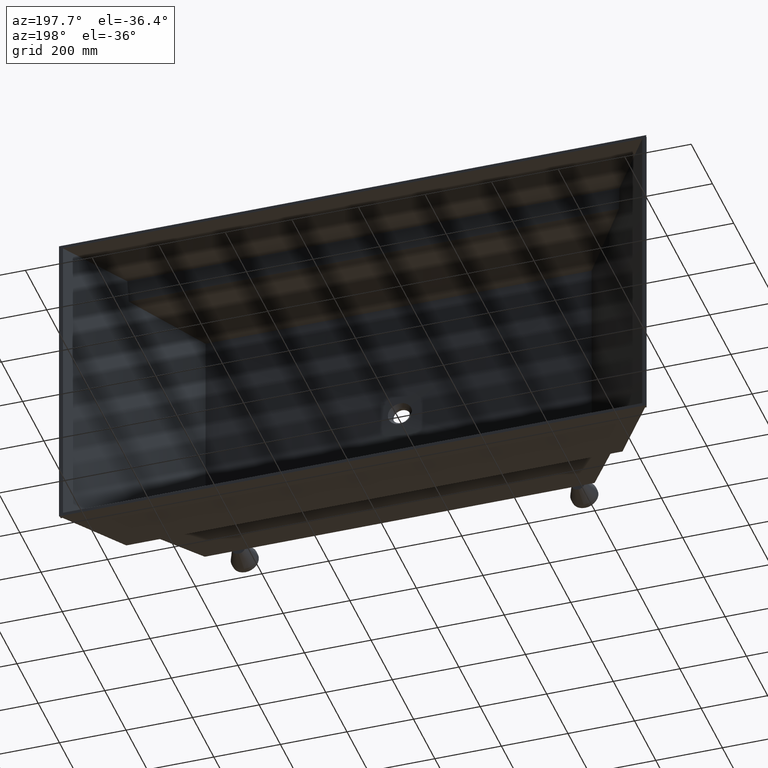
[diagram: clean part render]
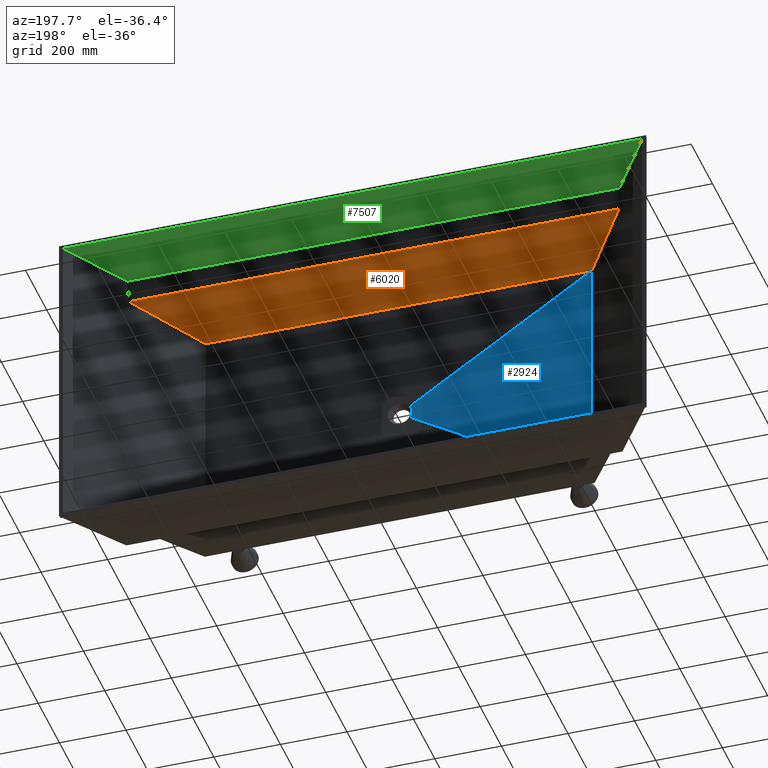
[diagram: same view with three faces highlighted in distinct colors, each labeled with its STEP entity id]
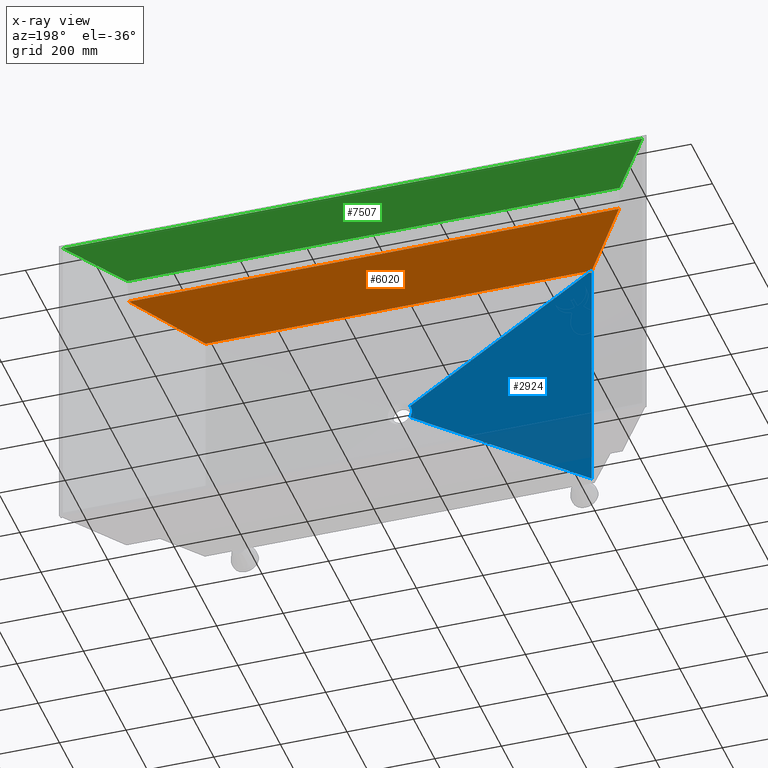
[diagram: x-ray of the same camera — body ghosted, the three highlighted faces saturated]
A machine part, auxiliary view with three faces highlighted in distinct colors.
The next image is the same camera in x-ray (body ghosted, the three faces saturated) — at least one of them is partly hidden behind the body in this view.
Their STEP definitions:

[orange] entity #6020 — the highlighted planar face has unit normal (0, -0.0897, 0.996).
#9 = VECTOR ( 'NONE', #7030, 1000.000000000000000 ) ;
#1390 = EDGE_CURVE ( 'NONE', #8579, #4532, #5361, .T. ) ;
#1788 = DIRECTION ( 'NONE',  ( 0.5549174707474422400, 0.8285491890815256400, 0.07465146972168566800 ) ) ;
#1849 = CARTESIAN_POINT ( 'NONE',  ( 777.2985769756136300, -138.4128143777896900, 396.5420166450842900 ) ) ;
#1881 = CARTESIAN_POINT ( 'NONE',  ( 870.0010999999998400, -432.9999999999999400, 369.9999999999999400 ) ) ;
#1958 = DIRECTION ( 'NONE',  ( -1.000000000000000000, 0.0000000000000000000, 0.0000000000000000000 ) ) ;
#2199 = AXIS2_PLACEMENT_3D ( 'NONE', #4307, #4246, #4219 ) ;
#2229 = VECTOR ( 'NONE', #1788, 1000.000000000000200 ) ;
#3835 = CARTESIAN_POINT ( 'NONE',  ( -580.0000000000000000, -432.9999999999999400, 369.9999999999997200 ) ) ;
#3982 = ORIENTED_EDGE ( 'NONE', *, *, #1390, .T. ) ;
#3992 = LINE ( 'NONE', #6996, #9 ) ;
#4219 = DIRECTION ( 'NONE',  ( 0.0000000000000000000, -0.9959656295343050100, -0.08973552689061171900 ) ) ;
#4246 = DIRECTION ( 'NONE',  ( 0.0000000000000000000, -0.08973552689061171900, 0.9959656295343050100 ) ) ;
#4307 = CARTESIAN_POINT ( 'NONE',  ( 870.0010999999998400, -200.0000000000000000, 390.9930715935336100 ) ) ;
#4532 = VERTEX_POINT ( 'NONE', #3835 ) ;
#4665 = ORIENTED_EDGE ( 'NONE', *, *, #7271, .F. ) ;
#4763 = FACE_OUTER_BOUND ( 'NONE', #5044, .T. ) ;
#5044 = EDGE_LOOP ( 'NONE', ( #5345, #3982, #8872, #4665 ) ) ;
#5120 = EDGE_CURVE ( 'NONE', #4532, #5945, #5314, .T. ) ;
#5314 = LINE ( 'NONE', #8695, #6933 ) ;
#5345 = ORIENTED_EDGE ( 'NONE', *, *, #7106, .F. ) ;
#5361 = LINE ( 'NONE', #1881, #5926 ) ;
#5789 = PLANE ( 'NONE',  #2199 ) ;
#5877 = LINE ( 'NONE', #1849, #2229 ) ;
#5926 = VECTOR ( 'NONE', #1958, 1000.000000000000000 ) ;
#5945 = VERTEX_POINT ( 'NONE', #6188 ) ;
#6020 = ADVANCED_FACE ( 'NONE', ( #4763 ), #5789, .F. ) ;
#6188 = CARTESIAN_POINT ( 'NONE',  ( -736.0508083140877000, -200.0000000000000000, 390.9930715935336100 ) ) ;
#6933 = VECTOR ( 'NONE', #7367, 1000.000000000000100 ) ;
#6996 = CARTESIAN_POINT ( 'NONE',  ( 870.0010999999998400, -200.0000000000000000, 390.9930715935336100 ) ) ;
#7030 = DIRECTION ( 'NONE',  ( -1.000000000000000000, 0.0000000000000000000, 0.0000000000000000000 ) ) ;
#7106 = EDGE_CURVE ( 'NONE', #8579, #8760, #5877, .T. ) ;
#7271 = EDGE_CURVE ( 'NONE', #8760, #5945, #3992, .T. ) ;
#7367 = DIRECTION ( 'NONE',  ( -0.5549174707474425800, 0.8285491890815255300, 0.07465146972168566800 ) ) ;
#8115 = CARTESIAN_POINT ( 'NONE',  ( 736.0508083140871300, -200.0000000000000000, 390.9930715935336100 ) ) ;
#8256 = CARTESIAN_POINT ( 'NONE',  ( 579.9999999999997700, -433.0000000000000000, 370.0000000000000000 ) ) ;
#8579 = VERTEX_POINT ( 'NONE', #8256 ) ;
#8695 = CARTESIAN_POINT ( 'NONE',  ( -777.2985769756142000, -138.4128143777898600, 396.5420166450842900 ) ) ;
#8760 = VERTEX_POINT ( 'NONE', #8115 ) ;
#8872 = ORIENTED_EDGE ( 'NONE', *, *, #5120, .T. ) ;

[blue] entity #2924 — the highlighted face is a freeform B-spline surface patch.
#34 = CARTESIAN_POINT ( 'NONE',  ( -580.0000000000001100, -433.0000000000000000, -449.9999999999998900 ) ) ;
#167 = CARTESIAN_POINT ( 'NONE',  ( -30.56765834533911200, -444.8140548353761700, -19.49930693500326500 ) ) ;
#234 = EDGE_LOOP ( 'NONE', ( #659, #1214, #7530, #2360 ) ) ;
#659 = ORIENTED_EDGE ( 'NONE', *, *, #2936, .T. ) ;
#764 = VECTOR ( 'NONE', #7022, 1000.000000000000100 ) ;
#766 = CARTESIAN_POINT ( 'NONE',  ( -580.0000000000001100, -433.0000000000000000, -377.3999999999996400 ) ) ;
#1196 = CARTESIAN_POINT ( 'NONE',  ( -32.74141835627872200, -444.8015000420929800, 15.57380538438709800 ) ) ;
#1214 = ORIENTED_EDGE ( 'NONE', *, *, #7430, .T. ) ;
#1307 = LINE ( 'NONE', #2593, #1507 ) ;
#1484 = CARTESIAN_POINT ( 'NONE',  ( -21.76921567608521400, -445.0000000000000000, -14.21898241405437300 ) ) ;
#1507 = VECTOR ( 'NONE', #7745, 999.9999999999998900 ) ;
#1617 = EDGE_CURVE ( 'NONE', #8200, #4985, #4004, .T. ) ;
#1833 = CARTESIAN_POINT ( 'NONE',  ( -30.56730596582646000, -444.8140551276470700, 19.49983311536442800 ) ) ;
#2293 = CARTESIAN_POINT ( 'NONE',  ( -31.43810724204282900, -444.8092036110172700, 18.07660891271805400 ) ) ;
#2360 = ORIENTED_EDGE ( 'NONE', *, *, #1617, .F. ) ;
#2453 = CARTESIAN_POINT ( 'NONE',  ( -30.82540846008339500, -444.8126231954483400, 19.08795703520714700 ) ) ;
#2560 = CARTESIAN_POINT ( 'NONE',  ( -33.13869108395567100, -444.7990600993301800, -14.70422231844733000 ) ) ;
#2593 = CARTESIAN_POINT ( 'NONE',  ( -300.9598117256403500, -439.0000000000000000, -191.9916040318738300 ) ) ;
#2610 = CARTESIAN_POINT ( 'NONE',  ( -30.82520222363604400, -444.8126243304379800, -19.08828455834499500 ) ) ;
#2641 = CARTESIAN_POINT ( 'NONE',  ( -33.86181984412965600, -444.7945150074170300, -12.93941250246953200 ) ) ;
#2754 = CARTESIAN_POINT ( 'NONE',  ( -36.22048015240812900, -444.7786045098187100, 1.921671570568215000 ) ) ;
#2778 = CARTESIAN_POINT ( 'NONE',  ( -31.89407816595993900, -444.8065466085960800, 17.25368618505483200 ) ) ;
#2924 = ADVANCED_FACE ( 'NONE', ( #3083 ), #8666, .F. ) ;
#2936 = EDGE_CURVE ( 'NONE', #8200, #4900, #1307, .T. ) ;
#3083 = FACE_OUTER_BOUND ( 'NONE', #234, .T. ) ;
#3107 = CARTESIAN_POINT ( 'NONE',  ( -33.13331701981609700, -444.7990929359166300, 14.71582126275327900 ) ) ;
#3127 = CARTESIAN_POINT ( 'NONE',  ( -30.69771827209721200, -444.8133234551243600, -19.29403795304559200 ) ) ;
#3155 = VECTOR ( 'NONE', #9026, 1000.000000000000000 ) ;
#3606 = CARTESIAN_POINT ( 'NONE',  ( -588.5041239579719600, -432.8162719284654800, -219.0059805111616000 ) ) ;
#3637 = CARTESIAN_POINT ( 'NONE',  ( -588.4821126358390300, -432.8162719284654800, -31.28605220817880900 ) ) ;
#3835 = CARTESIAN_POINT ( 'NONE',  ( -580.0000000000000000, -432.9999999999999400, 369.9999999999997200 ) ) ;
#4004 = B_SPLINE_CURVE_WITH_KNOTS ( 'NONE', 3,
 ( #6174, #3127, #2610, #7306, #8547, #5305, #2560, #2641, #5952, #5413, #5296, #5281, #5266, #5261, #5259, #5244, #5181, #2754, #7318, #7301, #4952, #5780, #8059, #8012, #8097, #8106, #5718, #3107, #1196, #2778, #2293, #2453, #5110, #1833 ),
 .UNSPECIFIED., .F., .F.,
 ( 4, 2, 2, 2, 2, 2, 2, 2, 2, 2, 2, 2, 2, 2, 2, 2, 4 ),
 ( 0.0000000000000000000, 0.01772811843294067400, 0.08662173569772688200, 0.1555153529625134300, 0.2244089702272999400, 0.2933025874920858200, 0.3621962047568723600, 0.4310898220216589100, 0.4999834392864447900, 0.6377706738160178200, 0.7066642910808037500, 0.7755579083455902400, 0.8100047169779838200, 0.8444515256103768400, 0.9133451428751626600, 0.9822387601399491500, 1.000000000000000000 ),
 .UNSPECIFIED. ) ;
#4174 = EDGE_CURVE ( 'NONE', #4532, #4985, #6172, .T. ) ;
#4532 = VERTEX_POINT ( 'NONE', #3835 ) ;
#4900 = VERTEX_POINT ( 'NONE', #8995 ) ;
#4952 = CARTESIAN_POINT ( 'NONE',  ( -35.45135836803476100, -444.7839795961700100, 7.514293012388144200 ) ) ;
#4985 = VERTEX_POINT ( 'NONE', #8808 ) ;
#5026 = CARTESIAN_POINT ( 'NONE',  ( -580.0000000000001100, -433.0000000000000000, -374.9333333333329400 ) ) ;
#5050 = CARTESIAN_POINT ( 'NONE',  ( -21.81935160115035900, -445.0000000000000000, -14.14039096395225300 ) ) ;
#5080 = CARTESIAN_POINT ( 'NONE',  ( -21.86948752621550400, -445.0000000000000000, -14.06179951385013500 ) ) ;
#5110 = CARTESIAN_POINT ( 'NONE',  ( -30.69752466145234500, -444.8133244594840200, 19.29435946762402700 ) ) ;
#5123 = CARTESIAN_POINT ( 'NONE',  ( -588.5468887895816600, -432.8162719284655400, -382.9605456649140400 ) ) ;
#5149 = CARTESIAN_POINT ( 'NONE',  ( -588.5461211748460100, -432.8162719284655400, -380.4573159603958200 ) ) ;
#5176 = CARTESIAN_POINT ( 'NONE',  ( -580.0000000000001100, -433.0000000000000000, -372.4666666666663000 ) ) ;
#5181 = CARTESIAN_POINT ( 'NONE',  ( -36.22185923866242500, -444.7785944522145200, -0.9398985489317578400 ) ) ;
#5244 = CARTESIAN_POINT ( 'NONE',  ( -36.18458293180710000, -444.7788579542607900, -1.894923935516449100 ) ) ;
#5259 = CARTESIAN_POINT ( 'NONE',  ( -36.03625071387895000, -444.7799067998687400, -3.791485130253340800 ) ) ;
#5261 = CARTESIAN_POINT ( 'NONE',  ( -35.92561370361441000, -444.7806889965376600, -4.730525605496598700 ) ) ;
#5266 = CARTESIAN_POINT ( 'NONE',  ( -35.63294504037918400, -444.7827260942458500, -6.592948213660759100 ) ) ;
#5281 = CARTESIAN_POINT ( 'NONE',  ( -35.45094957352917900, -444.7839823684104200, -7.515982226303683500 ) ) ;
#5296 = CARTESIAN_POINT ( 'NONE',  ( -35.01613488929456300, -444.7869374765397200, -9.345770808548318000 ) ) ;
#5305 = CARTESIAN_POINT ( 'NONE',  ( -32.74442303289143300, -444.8014819842241500, -15.56766168283038700 ) ) ;
#5413 = CARTESIAN_POINT ( 'NONE',  ( -34.76332382022828700, -444.7886355811431300, -10.25250652753584300 ) ) ;
#5633 = CARTESIAN_POINT ( 'NONE',  ( -588.4932912487522600, -432.8162719284655400, -156.4314884892164300 ) ) ;
#5718 = CARTESIAN_POINT ( 'NONE',  ( -33.67210472190944900, -444.7957078759700900, 13.40315150937535500 ) ) ;
#5780 = CARTESIAN_POINT ( 'NONE',  ( -35.01560382327910000, -444.7869410797320600, 9.347974558241498100 ) ) ;
#5869 = CARTESIAN_POINT ( 'NONE',  ( -580.0000000000001100, -433.0000000000000000, -154.1666666666667700 ) ) ;
#5885 = CARTESIAN_POINT ( 'NONE',  ( -25.54218162178406400, -445.0000000000000600, -5.017869069201322100 ) ) ;
#5952 = CARTESIAN_POINT ( 'NONE',  ( -34.18606458341243800, -444.7924236354069200, -12.04956869124118100 ) ) ;
#6059 = CARTESIAN_POINT ( 'NONE',  ( -24.12722973465617900, -445.0000000000000600, -9.763856506295166300 ) ) ;
#6080 = CARTESIAN_POINT ( 'NONE',  ( -588.5262203168255200, -432.8162719284655400, -312.8710601414813400 ) ) ;
#6103 = CARTESIAN_POINT ( 'NONE',  ( -580.0000000000001100, -433.0000000000000000, -308.3333333333331400 ) ) ;
#6122 = CARTESIAN_POINT ( 'NONE',  ( -23.11915458853338000, -445.0000000000000600, -11.95662158203125200 ) ) ;
#6147 = CARTESIAN_POINT ( 'NONE',  ( -588.5349907611803200, -432.8162719284655400, -344.1604852448819000 ) ) ;
#6165 = CARTESIAN_POINT ( 'NONE',  ( -580.0000000000001100, -433.0000000000000000, -339.1666666666664000 ) ) ;
#6172 = LINE ( 'NONE', #8467, #764 ) ;
#6174 = CARTESIAN_POINT ( 'NONE',  ( -30.56765834533911200, -444.8140548353761700, -19.49930693500326500 ) ) ;
#6176 = CARTESIAN_POINT ( 'NONE',  ( -580.0000000000001100, -433.0000000000000000, -369.9999999999996000 ) ) ;
#6191 = CARTESIAN_POINT ( 'NONE',  ( -22.54632251459497300, -445.0000000000000600, -13.00081493747151600 ) ) ;
#6214 = CARTESIAN_POINT ( 'NONE',  ( -588.5445859453749300, -432.8162719284655400, -375.4508565513593800 ) ) ;
#6231 = CARTESIAN_POINT ( 'NONE',  ( -21.91962345128065000, -445.0000000000000000, -13.98320806374801400 ) ) ;
#6280 = CARTESIAN_POINT ( 'NONE',  ( -580.0000000000001100, -432.9999999999999400, -123.3333333333334700 ) ) ;
#6294 = CARTESIAN_POINT ( 'NONE',  ( -588.5453535601104700, -432.8162719284655400, -377.9540862558776000 ) ) ;
#6534 = CARTESIAN_POINT ( 'NONE',  ( -580.0000000000001100, -432.9999999999999400, -246.6666666666666000 ) ) ;
#6579 = CARTESIAN_POINT ( 'NONE',  ( -580.0000000000001100, -432.9999999999999400, -215.8333333333333100 ) ) ;
#6637 = CARTESIAN_POINT ( 'NONE',  ( -588.5107860082788400, -432.8162719284654800, -250.2938080376540600 ) ) ;
#6645 = CARTESIAN_POINT ( 'NONE',  ( -25.26988100491008300, -444.9999999999998900, -6.242282310927489400 ) ) ;
#6665 = CARTESIAN_POINT ( 'NONE',  ( -24.56235433492526400, -444.9999999999998300, -8.615319145406743900 ) ) ;
#6674 = CARTESIAN_POINT ( 'NONE',  ( -588.4891221431510100, -432.8162719284654800, -125.1448226734958400 ) ) ;
#6695 = CARTESIAN_POINT ( 'NONE',  ( -25.90727054390348600, -445.0000000000000600, -2.528909836439777100 ) ) ;
#6727 = CARTESIAN_POINT ( 'NONE',  ( -580.0000000000001100, -432.9999999999999400, -61.66666666666689200 ) ) ;
#6810 = LINE ( 'NONE', #34, #3155 ) ;
#6812 = CARTESIAN_POINT ( 'NONE',  ( -26.00000000000000700, -445.0000000000000600, -1.264490353752050400 ) ) ;
#6881 = CARTESIAN_POINT ( 'NONE',  ( -580.0000000000001100, -432.9999999999999400, 30.83333333333302700 ) ) ;
#6888 = CARTESIAN_POINT ( 'NONE',  ( -588.4835323861843800, -432.8162719284654800, -62.57210550144097300 ) ) ;
#6916 = CARTESIAN_POINT ( 'NONE',  ( -580.0000000000001100, -432.9999999999999400, -30.83333333333359500 ) ) ;
#6925 = CARTESIAN_POINT ( 'NONE',  ( -26.00000000000001100, -445.0000000000000600, 1.264490353752040700 ) ) ;
#6937 = CARTESIAN_POINT ( 'NONE',  ( -580.0000000000001100, -432.9999999999999400, 61.66666666666634500 ) ) ;
#6948 = CARTESIAN_POINT ( 'NONE',  ( -588.4821126358390300, -432.8162719284654800, 31.28605220817822600 ) ) ;
#6988 = CARTESIAN_POINT ( 'NONE',  ( -25.90727054390348300, -445.0000000000000600, 2.528909836439767700 ) ) ;
#7020 = CARTESIAN_POINT ( 'NONE',  ( -588.4835323861843800, -432.8162719284654800, 62.57210550144041900 ) ) ;
#7022 = DIRECTION ( 'NONE',  ( 0.8429239527360896700, -0.01812478606645660400, -0.5377273491592291500 ) ) ;
#7034 = CARTESIAN_POINT ( 'NONE',  ( -580.0000000000000000, -432.9999999999999400, 123.3333333333329900 ) ) ;
#7050 = CARTESIAN_POINT ( 'NONE',  ( -588.4891221431508900, -432.8162719284654800, 125.1448226734953600 ) ) ;
#7056 = CARTESIAN_POINT ( 'NONE',  ( -25.54218162178407400, -445.0000000000001100, 5.017869069201314100 ) ) ;
#7088 = CARTESIAN_POINT ( 'NONE',  ( -25.26988100491007900, -444.9999999999998300, 6.242282310927482300 ) ) ;
#7110 = CARTESIAN_POINT ( 'NONE',  ( -579.9999999999998900, -432.9999999999999400, 154.1666666666663200 ) ) ;
#7151 = CARTESIAN_POINT ( 'NONE',  ( -588.4932912487520300, -432.8162719284654800, 156.4314884892159800 ) ) ;
#7208 = CARTESIAN_POINT ( 'NONE',  ( -588.5041239579717300, -432.8162719284655400, 219.0059805111612800 ) ) ;
#7218 = CARTESIAN_POINT ( 'NONE',  ( -580.0000000000000000, -433.0000000000000000, 369.9999999999997200 ) ) ;
#7240 = CARTESIAN_POINT ( 'NONE',  ( -24.56235433492526700, -444.9999999999999400, 8.615319145406736800 ) ) ;
#7276 = CARTESIAN_POINT ( 'NONE',  ( -579.9999999999998900, -433.0000000000000000, 215.8333333333330000 ) ) ;
#7301 = CARTESIAN_POINT ( 'NONE',  ( -35.63318139805406300, -444.7827244311970400, 6.591326383911224200 ) ) ;
#7306 = CARTESIAN_POINT ( 'NONE',  ( -31.43726554967461000, -444.8092084338898600, -18.07804802994965200 ) ) ;
#7313 = CARTESIAN_POINT ( 'NONE',  ( -24.12722973465617200, -445.0000000000000000, 9.763856506295153900 ) ) ;
#7318 = CARTESIAN_POINT ( 'NONE',  ( -36.07121472542282000, -444.7796755877503800, 3.804216188069321700 ) ) ;
#7320 = CARTESIAN_POINT ( 'NONE',  ( -579.9999999999998900, -432.9999999999999400, 246.6666666666663200 ) ) ;
#7359 = CARTESIAN_POINT ( 'NONE',  ( -588.5107860082786100, -432.8162719284654800, 250.2938080376537800 ) ) ;
#7387 = CARTESIAN_POINT ( 'NONE',  ( -23.11915458853339400, -445.0000000000001100, 11.95662158203123900 ) ) ;
#7394 = CARTESIAN_POINT ( 'NONE',  ( -579.9999999999998900, -432.9999999999999400, 308.3333333333330300 ) ) ;
#7421 = CARTESIAN_POINT ( 'NONE',  ( -588.5262203168252900, -432.8162719284654800, 312.8710601414812200 ) ) ;
#7430 = EDGE_CURVE ( 'NONE', #4900, #4532, #6810, .T. ) ;
#7432 = CARTESIAN_POINT ( 'NONE',  ( -22.54632251459497300, -445.0000000000000600, 13.00081493747150300 ) ) ;
#7451 = CARTESIAN_POINT ( 'NONE',  ( -579.9999999999998900, -432.9999999999999400, 339.1666666666664000 ) ) ;
#7480 = CARTESIAN_POINT ( 'NONE',  ( -588.5349907611801000, -432.8162719284654800, 344.1604852448819000 ) ) ;
#7530 = ORIENTED_EDGE ( 'NONE', *, *, #4174, .T. ) ;
#7549 = CARTESIAN_POINT ( 'NONE',  ( -21.91962345128065700, -445.0000000000000000, 13.98320806374800200 ) ) ;
#7584 = CARTESIAN_POINT ( 'NONE',  ( -580.0000000000000000, -433.0000000000000000, 372.4666666666664100 ) ) ;
#7612 = CARTESIAN_POINT ( 'NONE',  ( -588.5445859453748200, -432.8162719284655400, 375.4508565513594900 ) ) ;
#7628 = CARTESIAN_POINT ( 'NONE',  ( -21.86948752621551200, -445.0000000000000000, 14.06179951385012200 ) ) ;
#7639 = CARTESIAN_POINT ( 'NONE',  ( -580.0000000000000000, -433.0000000000000000, 374.9333333333330500 ) ) ;
#7683 = CARTESIAN_POINT ( 'NONE',  ( -588.5453535601103600, -432.8162719284655400, 377.9540862558777100 ) ) ;
#7695 = CARTESIAN_POINT ( 'NONE',  ( -21.81935160115036600, -445.0000000000000000, 14.14039096395224200 ) ) ;
#7705 = CARTESIAN_POINT ( 'NONE',  ( -588.5461211748458900, -432.8162719284655400, 380.4573159603959300 ) ) ;
#7740 = CARTESIAN_POINT ( 'NONE',  ( -21.76921567608522100, -445.0000000000000000, 14.21898241405436100 ) ) ;
#7745 = DIRECTION ( 'NONE',  ( -0.8429239527360898900, 0.01812478606645660400, -0.5377273491592290400 ) ) ;
#7760 = CARTESIAN_POINT ( 'NONE',  ( -588.5468887895815400, -432.8162719284655400, 382.9605456649141500 ) ) ;
#7899 = CARTESIAN_POINT ( 'NONE',  ( -580.0000000000000000, -433.0000000000000000, 377.3999999999997500 ) ) ;
#8012 = CARTESIAN_POINT ( 'NONE',  ( -34.32538451715749500, -444.7915092932514100, 11.61536836956860000 ) ) ;
#8059 = CARTESIAN_POINT ( 'NONE',  ( -34.76167112678281500, -444.7886466398521200, 10.25859850585224300 ) ) ;
#8097 = CARTESIAN_POINT ( 'NONE',  ( -34.17032436369090200, -444.7925172422862400, 12.06695047155567800 ) ) ;
#8106 = CARTESIAN_POINT ( 'NONE',  ( -33.84369876869258300, -444.7946164130200400, 12.96069377683308200 ) ) ;
#8200 = VERTEX_POINT ( 'NONE', #167 ) ;
#8467 = CARTESIAN_POINT ( 'NONE',  ( -300.9598117256402900, -439.0000000000000000, 191.9916040318738300 ) ) ;
#8547 = CARTESIAN_POINT ( 'NONE',  ( -31.89405815491896900, -444.8065468882628600, -17.25391202251997700 ) ) ;
#8666 = B_SPLINE_SURFACE_WITH_KNOTS ( 'NONE', 3, 1, ( 
 ( #7760, #7899, #7740 ),
 ( #7705, #7639, #7695 ),
 ( #7683, #7584, #7628 ),
 ( #7612, #7218, #7549 ),
 ( #7480, #7451, #7432 ),
 ( #7421, #7394, #7387 ),
 ( #7359, #7320, #7313 ),
 ( #7208, #7276, #7240 ),
 ( #7151, #7110, #7088 ),
 ( #7050, #7034, #7056 ),
 ( #7020, #6937, #6988 ),
 ( #6948, #6881, #6925 ),
 ( #3637, #6916, #6812 ),
 ( #6888, #6727, #6695 ),
 ( #6674, #6280, #5885 ),
 ( #5633, #5869, #6645 ),
 ( #3606, #6579, #6665 ),
 ( #6637, #6534, #6059 ),
 ( #6080, #6103, #6122 ),
 ( #6147, #6165, #6191 ),
 ( #6214, #6176, #6231 ),
 ( #6294, #5176, #5080 ),
 ( #5149, #5026, #5050 ),
 ( #5123, #766, #1484 ) ),
 .UNSPECIFIED., .F., .F., .F.,
 ( 4, 3, 2, 2, 2, 2, 2, 2, 2, 3, 4 ),
 ( 2, 1, 2 ),
 ( -0.01000000000000000000, 0.0000000000000000000, 0.1250000000000000000, 0.2500000000000000000, 0.3750000000000000000, 0.5000000000000000000, 0.6250000000000000000, 0.7500000000000000000, 0.8750000000000000000, 1.000000000000000000, 1.010000000000000000 ),
 ( -0.01531067262786818500, 0.0000000000000000000, 1.000000000000000000 ),
 .UNSPECIFIED. ) ;
#8808 = CARTESIAN_POINT ( 'NONE',  ( -30.56730596582646000, -444.8140551276470700, 19.49983311536442800 ) ) ;
#8995 = CARTESIAN_POINT ( 'NONE',  ( -580.0000000000001100, -433.0000000000000000, -369.9999999999996600 ) ) ;
#9026 = DIRECTION ( 'NONE',  ( 1.233581138472396200E-016, 0.0000000000000000000, 1.000000000000000000 ) ) ;

[green] entity #7507 — the highlighted planar face has unit normal (0, -0.0461, 0.9989).
#310 = ORIENTED_EDGE ( 'NONE', *, *, #7692, .F. ) ;
#755 = EDGE_LOOP ( 'NONE', ( #310, #4735, #6775, #7678 ) ) ;
#843 = CARTESIAN_POINT ( 'NONE',  ( 739.3995381062371700, -194.9999999999966200, 460.9930715935336700 ) ) ;
#968 = CARTESIAN_POINT ( 'NONE',  ( 739.3995381062371700, -194.9999999999966200, 460.9930715935336700 ) ) ;
#997 = VERTEX_POINT ( 'NONE', #5824 ) ;
#1140 = CARTESIAN_POINT ( 'NONE',  ( 869.9999999999998900, 0.0000000000000000000, 470.0000000000001700 ) ) ;
#1405 = CARTESIAN_POINT ( 'NONE',  ( -870.0000000000001100, 0.0000000000000000000, 470.0000000000001700 ) ) ;
#1431 = CARTESIAN_POINT ( 'NONE',  ( -739.3995381062357000, -194.9999999999998900, 460.9930715935336700 ) ) ;
#1860 = CARTESIAN_POINT ( 'NONE',  ( 869.9999999999998900, 0.0000000000000000000, 470.0000000000001700 ) ) ;
#1928 = CARTESIAN_POINT ( 'NONE',  ( 826.4665127020779200, -65.00000000000005700, 466.9976905311779700 ) ) ;
#1965 = VERTEX_POINT ( 'NONE', #1431 ) ;
#1994 = DIRECTION ( 'NONE',  ( 1.000000000000000000, 0.0000000000000000000, 0.0000000000000000000 ) ) ;
#2135 = VECTOR ( 'NONE', #4177, 1000.000000000000000 ) ;
#2695 = CARTESIAN_POINT ( 'NONE',  ( 782.9330254041564100, -130.0000000000001100, 463.9953810623557600 ) ) ;
#2958 = FACE_OUTER_BOUND ( 'NONE', #755, .T. ) ;
#3285 = EDGE_CURVE ( 'NONE', #997, #3969, #6521, .T. ) ;
#3644 = EDGE_CURVE ( 'NONE', #3969, #4731, #8885, .T. ) ;
#3969 = VERTEX_POINT ( 'NONE', #1860 ) ;
#4120 = LINE ( 'NONE', #5583, #2135 ) ;
#4177 = DIRECTION ( 'NONE',  ( -1.000000000000000000, -6.906990943429468300E-016, 0.0000000000000000000 ) ) ;
#4731 = VERTEX_POINT ( 'NONE', #843 ) ;
#4735 = ORIENTED_EDGE ( 'NONE', *, *, #3285, .T. ) ;
#4783 = EDGE_CURVE ( 'NONE', #4731, #1965, #4120, .T. ) ;
#5348 = B_SPLINE_CURVE_WITH_KNOTS ( 'NONE', 3,
 ( #6681, #6517, #6474, #6458 ),
 .UNSPECIFIED., .F., .F.,
 ( 4, 4 ),
 ( 0.0000000000000000000, 0.4503464203233260000 ),
 .UNSPECIFIED. ) ;
#5583 = CARTESIAN_POINT ( 'NONE',  ( 870.0010999999997200, -194.9999999999987500, 460.9930715935336700 ) ) ;
#5824 = CARTESIAN_POINT ( 'NONE',  ( -870.0000000000001100, 0.0000000000000000000, 470.0000000000001700 ) ) ;
#6458 = CARTESIAN_POINT ( 'NONE',  ( -739.3995381062357000, -194.9999999999998900, 460.9930715935336700 ) ) ;
#6474 = CARTESIAN_POINT ( 'NONE',  ( -782.9330254041568700, -130.0000000000000600, 463.9953810623558200 ) ) ;
#6517 = CARTESIAN_POINT ( 'NONE',  ( -826.4665127020784900, -65.00000000000004300, 466.9976905311780200 ) ) ;
#6521 = LINE ( 'NONE', #1405, #8285 ) ;
#6681 = CARTESIAN_POINT ( 'NONE',  ( -870.0000000000001100, 0.0000000000000000000, 470.0000000000001700 ) ) ;
#6775 = ORIENTED_EDGE ( 'NONE', *, *, #3644, .T. ) ;
#6957 = AXIS2_PLACEMENT_3D ( 'NONE', #7983, #7938, #7917 ) ;
#7507 = ADVANCED_FACE ( 'NONE', ( #2958 ), #8384, .F. ) ;
#7678 = ORIENTED_EDGE ( 'NONE', *, *, #4783, .T. ) ;
#7692 = EDGE_CURVE ( 'NONE', #997, #1965, #5348, .T. ) ;
#7917 = DIRECTION ( 'NONE',  ( -1.000000000000000000, 0.0000000000000000000, 3.190296047773440000E-017 ) ) ;
#7938 = DIRECTION ( 'NONE',  ( 3.186898301416702600E-017, -0.04614018358382760600, 0.9989349745898632400 ) ) ;
#7983 = CARTESIAN_POINT ( 'NONE',  ( 869.9999999999993200, 0.0000000000000000000, 470.0000000000001100 ) ) ;
#8285 = VECTOR ( 'NONE', #1994, 1000.000000000000000 ) ;
#8384 = PLANE ( 'NONE',  #6957 ) ;
#8885 = B_SPLINE_CURVE_WITH_KNOTS ( 'NONE', 3,
 ( #1140, #1928, #2695, #968 ),
 .UNSPECIFIED., .F., .F.,
 ( 4, 4 ),
 ( 0.0000000000000000000, 0.4503464203233261100 ),
 .UNSPECIFIED. ) ;